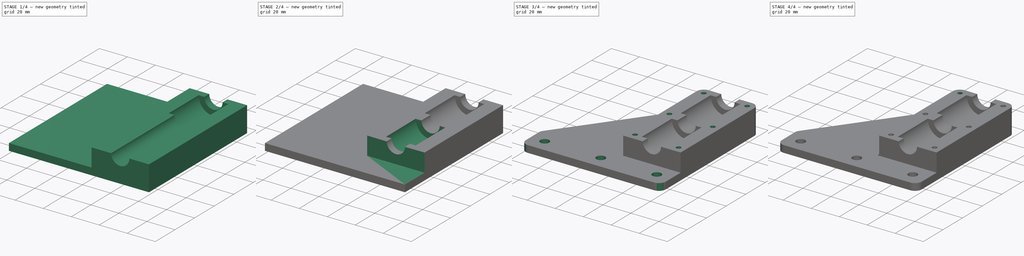
[diagram: build sequence overview — one tinted view per stage of 4, left to right]
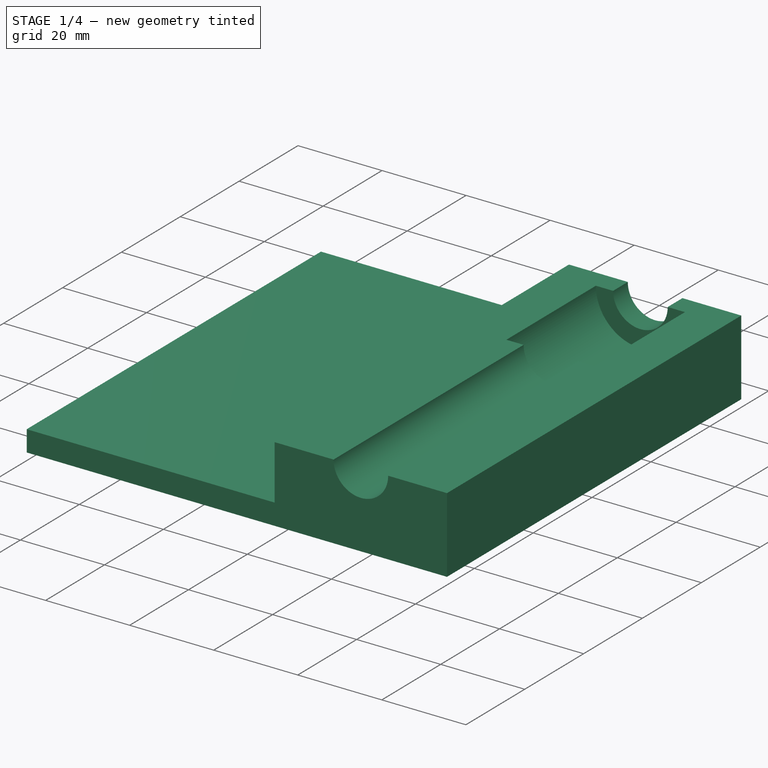
[diagram: stage 1 of 4 — iso view after this stage's code; geometry added in this stage tinted green]
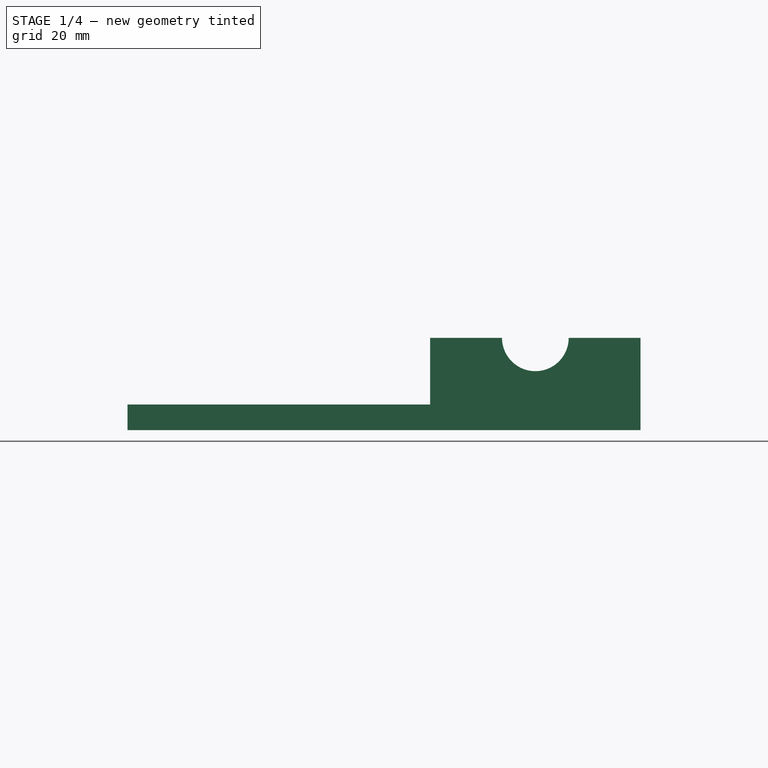
[diagram: stage 1 of 4 — front view after this stage's code; geometry added in this stage tinted green]
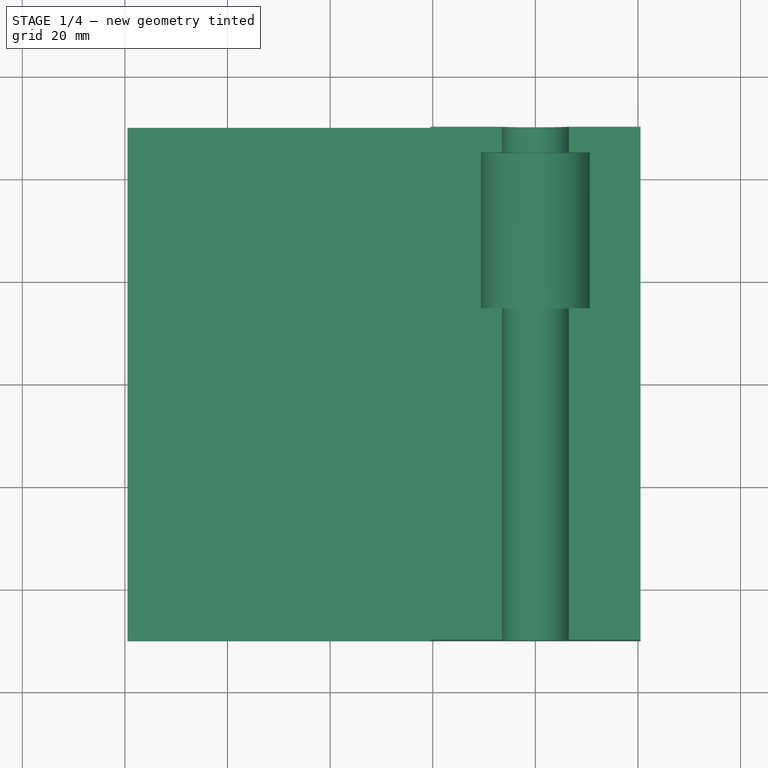
[diagram: stage 1 of 4 — top view after this stage's code; geometry added in this stage tinted green]
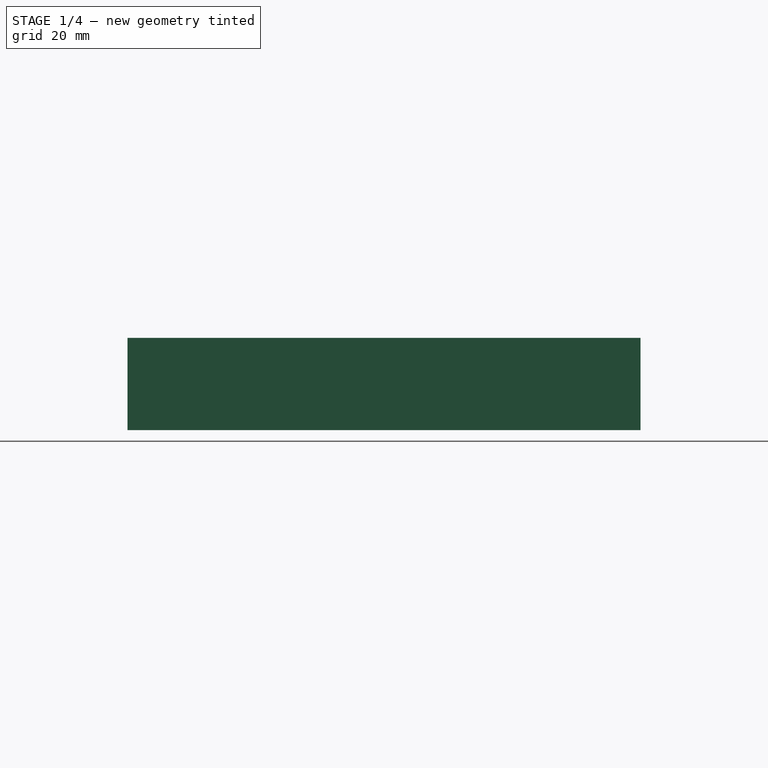
[diagram: stage 1 of 4 — right view after this stage's code; geometry added in this stage tinted green]
FCSTD DOCUMENT  (FreeCAD 0.19R20209 (Git))
Label: Z-Axel-Bearing_1000a
License: Creative Commons Attribution
LicenseURL: http://creativecommons.org/licenses/by/4.0/
objects: Sketcher::SketchObject×7, PartDesign::Pocket×6, PartDesign::Plane×3, PartDesign::Pad×1, PartDesign::Fillet×1, PartDesign::Chamfer×1, PartDesign::Body×1
note: 29 computed .brp shape members not serialized (recipe doc carries the construction recipe); baked Part::Feature solids carry a one-line shape summary decoded from their .brp

FEATURE [Sketcher::SketchObject] Sketch001
  MapMode = 5
  Placement = pos=(0,0,0) rot=(1,0,0;1.5708rad)
  Support = -> [XZ_Plane]
  expr: Constraints[19] = 21 + 20
  sketch-geometry (10):
    g0: Circle [constr] CenterX=0 CenterY=0 CenterZ=0 NormalX=0 NormalY=0 NormalZ=1 AngleXU=0 Radius=6.5
    g1: Circle [constr] CenterX=0 CenterY=0 CenterZ=0 NormalX=0 NormalY=0 NormalZ=1 AngleXU=0 Radius=10.5
    g2: LineSegment StartX=-20.5 StartY=0 StartZ=0 EndX=-6.5 EndY=0 EndZ=0
    g3: LineSegment StartX=20.5 StartY=0 StartZ=0 EndX=20.5 EndY=-18 EndZ=0
    g4: LineSegment StartX=20.5 StartY=-18 StartZ=0 EndX=-79.5 EndY=-18 EndZ=0
    g5: LineSegment StartX=-79.5 StartY=-18 StartZ=0 EndX=-79.5 EndY=-13 EndZ=0
    g6: LineSegment StartX=-20.5 StartY=0 StartZ=0 EndX=-20.5 EndY=-13 EndZ=0
    g7: LineSegment StartX=-20.5 StartY=-13 StartZ=0 EndX=-79.5 EndY=-13 EndZ=0
    g8: ArcOfCircle CenterX=0 CenterY=3.2e-15 CenterZ=0 NormalX=0 NormalY=0 NormalZ=1 AngleXU=0 Radius=6.5 StartAngle=3.14159 EndAngle=6.28319
    g9: LineSegment StartX=6.5 StartY=0 StartZ=0 EndX=20.5 EndY=0 EndZ=0
  constraints (28):
    c: Diameter(g0) = 13
    c: Coincident(g0,g-1)
    c: Diameter(g1) = 21
    c: Coincident(g1,g0)
    c: Coincident(g9,g3)
    c: Coincident(g3,g4)
    c: Coincident(g4,g5)
    c: Horizontal(g2)
    c: Horizontal(g4)
    c: Vertical(g3)
    c: Vertical(g5)
    c: DistanceY(g3,g3) = 18
    c: Vertical(g6)
    c: Coincident(g6,g7)
    c: Horizontal(g7)
    c: Coincident(g2,g6)
    c: Coincident(g5,g7)
    c: DistanceY(g4,g5) = 5
    c: Symmetric(g2,g9,g-1)
    c: DistanceX(g2,g9) = 41
    c: Horizontal(g8,g8)
    c: Horizontal(g8,g8)
    c: Diameter(g8) = 13
    c: Coincident(g8,g-1)
    c: PointOnObject(g2,g0)
    c: PointOnObject(g9,g0)
    c: Tangent(g2,g9)
    c: DistanceX(g4,g3) = 100
FEATURE [PartDesign::Pad] Pad
  Length = 100
  Length2 = 100
  Midplane = true
  Placement = pos=(0,0,0) rot=(1,0,0;1.5708rad)
  Profile = -> Sketch001
  Refine = true
  Type = 0
FEATURE [PartDesign::Plane] DatumPlane
  AttachmentOffset = pos=(0,0,-45) rot=(0,0,1;0rad)
  Length = 118.957
  MapMode = 5
  Placement = pos=(0,45,1e-14) rot=(1,0,0;1.5708rad)
  ResizeMode = 0
  Support = -> [XZ_Plane]
  Width = 64.4568
FEATURE [Sketcher::SketchObject] Sketch
  MapMode = 5
  Placement = pos=(0,45,1e-14) rot=(1,0,0;1.5708rad)
  Support = -> [DatumPlane]
  sketch-geometry (1):
    g0: Circle CenterX=0 CenterY=0 CenterZ=0 NormalX=0 NormalY=0 NormalZ=1 AngleXU=0 Radius=10.6
  constraints (2):
    c: Diameter(g0) = 21.2
    c: Coincident(g0,g-1)
FEATURE [PartDesign::Pocket] Pocket
  BaseFeature = -> Pad
  Length = 30.4
  Length2 = 100
  Placement = pos=(0,0,0) rot=(1,0,0;1.5708rad)
  Profile = -> Sketch
  Refine = true
  Reversed = true
  Type = 0
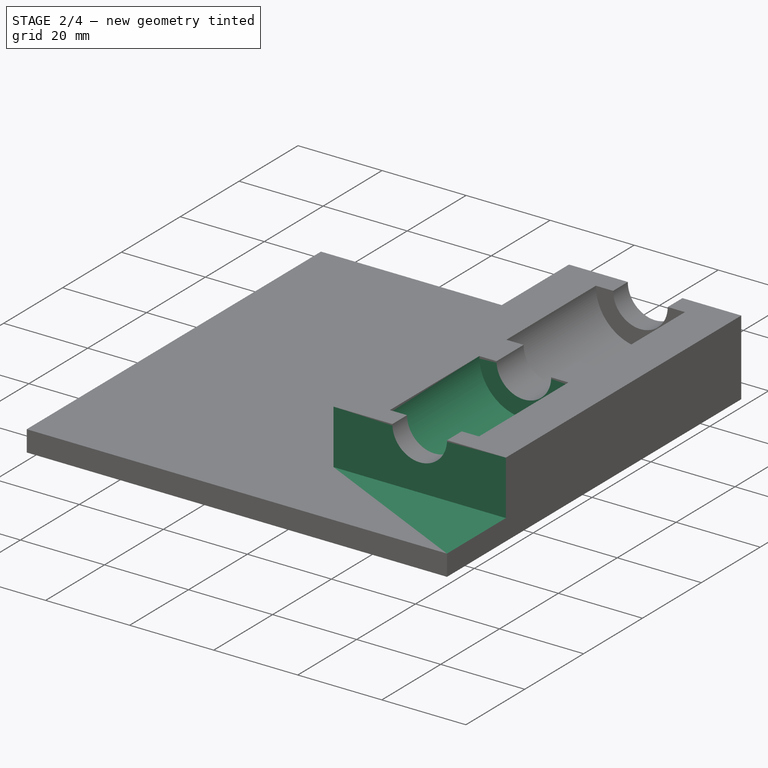
[diagram: stage 2 of 4 — iso view after this stage's code; geometry added in this stage tinted green]
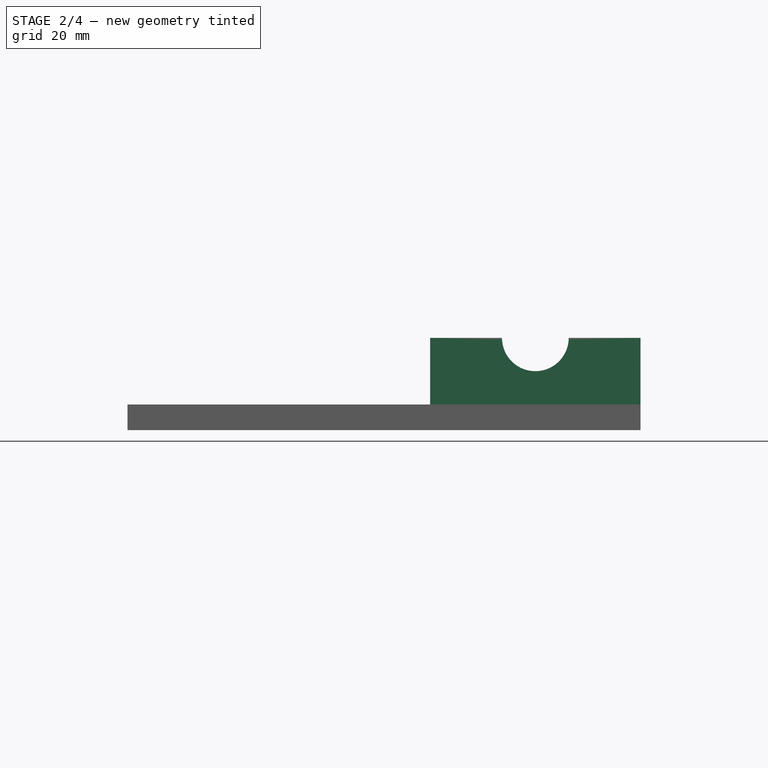
[diagram: stage 2 of 4 — front view after this stage's code; geometry added in this stage tinted green]
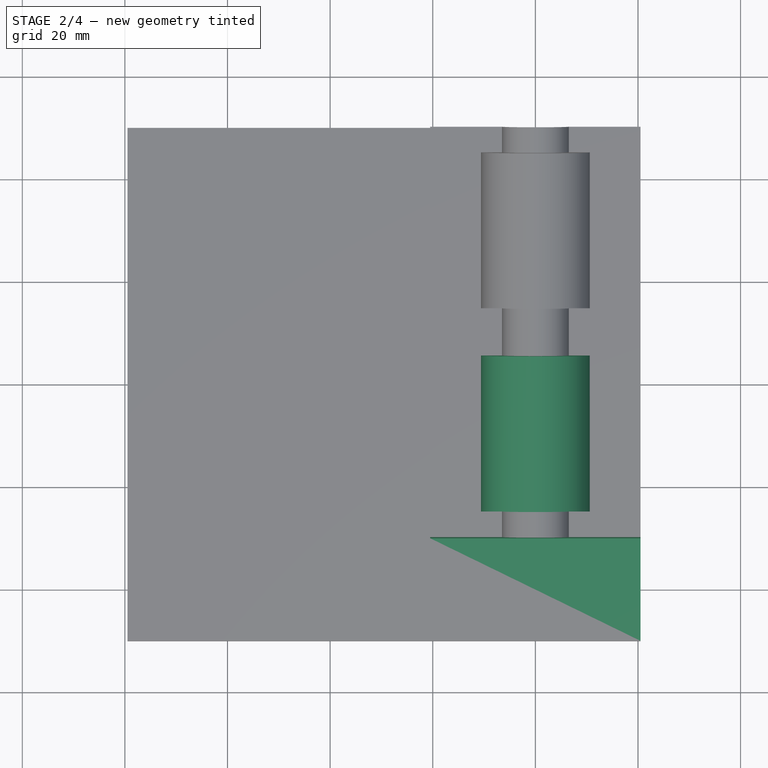
[diagram: stage 2 of 4 — top view after this stage's code; geometry added in this stage tinted green]
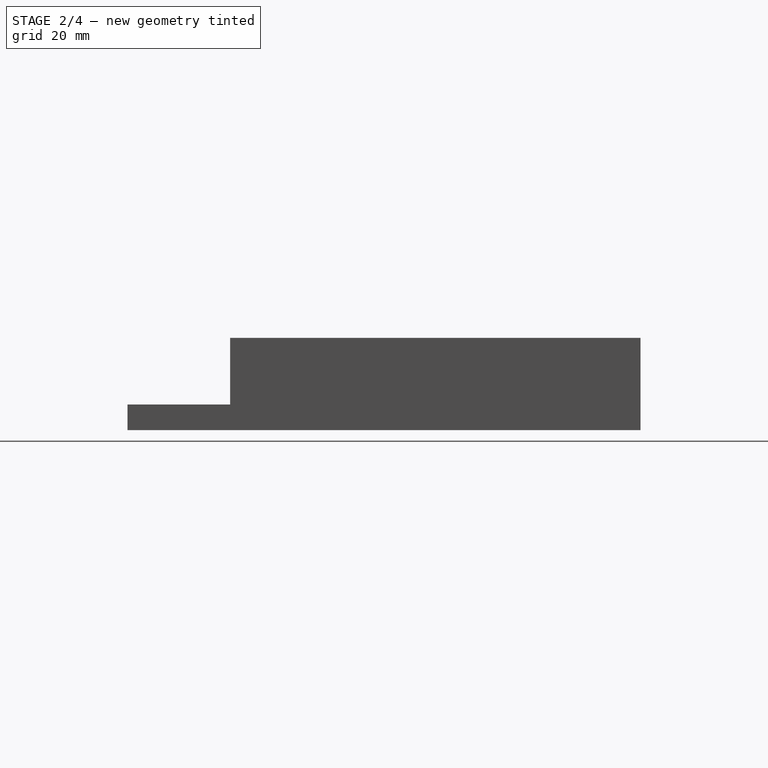
[diagram: stage 2 of 4 — right view after this stage's code; geometry added in this stage tinted green]
FEATURE [PartDesign::Plane] DatumPlane001
  AttachmentOffset = pos=(0,0,25) rot=(0,0,1;0rad)
  Length = 118.957
  MapMode = 5
  Placement = pos=(0,-25,-5.6e-15) rot=(1,0,0;1.5708rad)
  ResizeMode = 0
  Support = -> [XZ_Plane]
  Width = 64.4568
FEATURE [Sketcher::SketchObject] Sketch002
  MapMode = 5
  Placement = pos=(0,-25,-5.6e-15) rot=(1,0,0;1.5708rad)
  Support = -> [DatumPlane001]
  sketch-geometry (1):
    g0: Circle CenterX=0 CenterY=0 CenterZ=0 NormalX=0 NormalY=0 NormalZ=1 AngleXU=0 Radius=10.6
  constraints (2):
    c: Diameter(g0) = 21.2
    c: Coincident(g0,g-1)
FEATURE [PartDesign::Pocket] Pocket001
  BaseFeature = -> Pocket
  Length = 30.4
  Length2 = 100
  Placement = pos=(0,0,0) rot=(1,0,0;1.5708rad)
  Profile = -> Sketch002
  Refine = true
  Type = 0
FEATURE [PartDesign::Plane] DatumPlane002
  AttachmentOffset = pos=(0,0,30) rot=(0,0,1;0rad)
  Length = 118.957
  MapMode = 5
  Placement = pos=(0,-30,-6.7e-15) rot=(1,0,0;1.5708rad)
  ResizeMode = 0
  Support = -> [XZ_Plane]
  Width = 64.4568
FEATURE [Sketcher::SketchObject] Sketch003
  ExternalGeometry = -> [Pocket001]
  MapMode = 5
  Placement = pos=(0,-30,-6.7e-15) rot=(1,0,0;1.5708rad)
  Support = -> [DatumPlane002]
  sketch-geometry (4):
    g0: LineSegment StartX=-20.5 StartY=7.39497 StartZ=0 EndX=25.828 EndY=7.39497 EndZ=0
    g1: LineSegment StartX=25.828 StartY=7.39497 StartZ=0 EndX=25.828 EndY=-13 EndZ=0
    g2: LineSegment StartX=25.828 StartY=-13 StartZ=0 EndX=-20.5 EndY=-13 EndZ=0
    g3: LineSegment StartX=-20.5 StartY=-13 StartZ=0 EndX=-20.5 EndY=7.39497 EndZ=0
  constraints (9):
    c: Coincident(g0,g1)
    c: Coincident(g1,g2)
    c: Coincident(g2,g3)
    c: Coincident(g3,g0)
    c: Horizontal(g0)
    c: Horizontal(g2)
    c: Vertical(g1)
    c: Vertical(g3)
    c: Coincident(g2,g-3)
FEATURE [PartDesign::Pocket] Pocket002
  BaseFeature = -> Pocket001
  Length = 5
  Length2 = 100
  Placement = pos=(0,0,0) rot=(1,0,0;1.5708rad)
  Profile = -> Sketch003
  Refine = true
  Reversed = true
  Type = 1
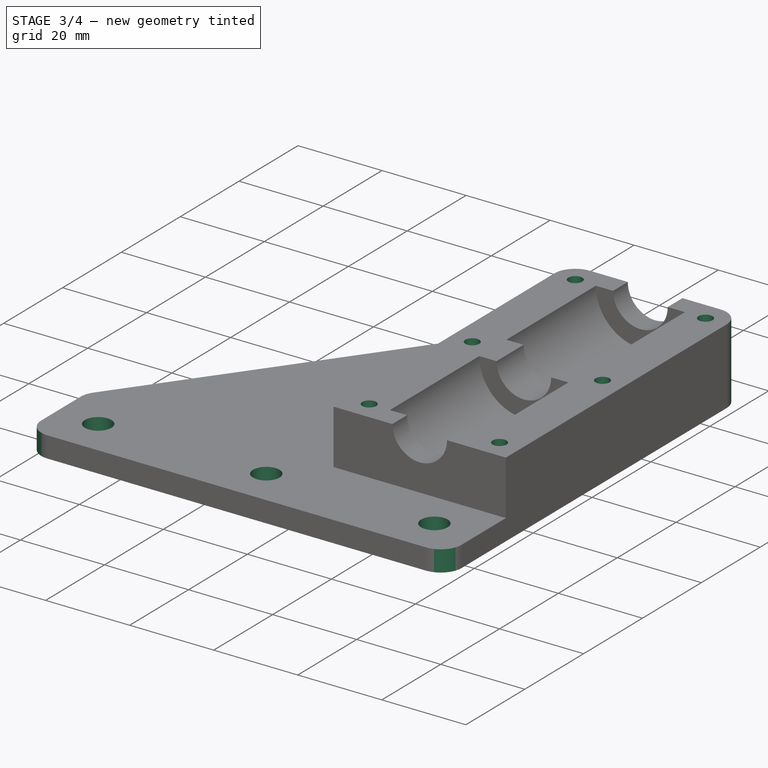
[diagram: stage 3 of 4 — iso view after this stage's code; geometry added in this stage tinted green]
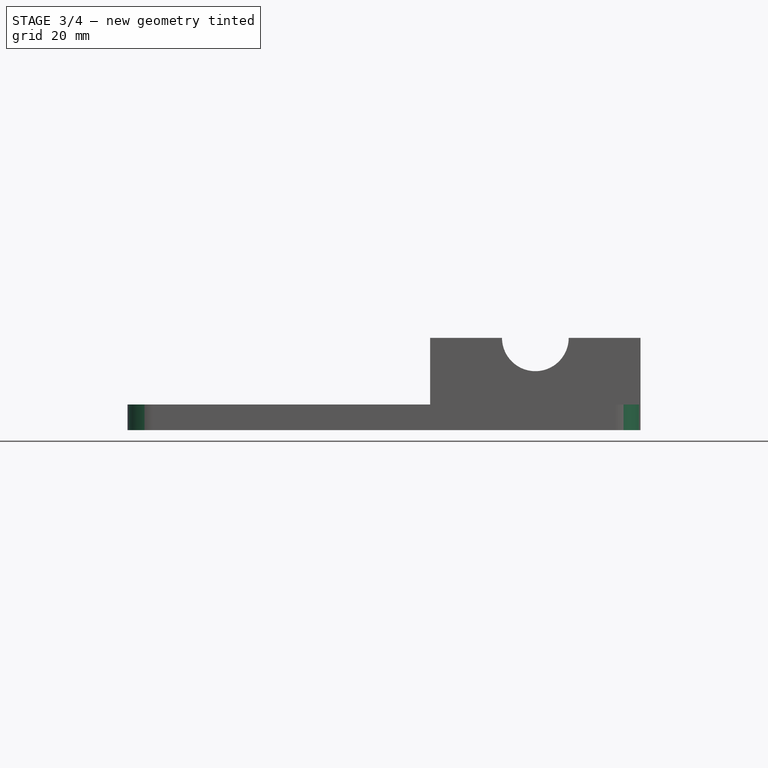
[diagram: stage 3 of 4 — front view after this stage's code; geometry added in this stage tinted green]
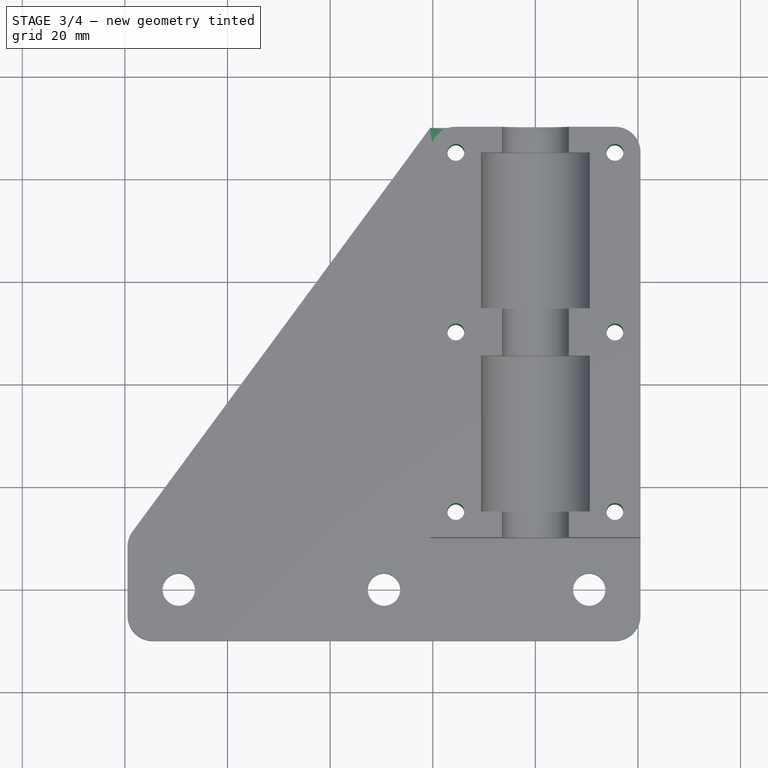
[diagram: stage 3 of 4 — top view after this stage's code; geometry added in this stage tinted green]
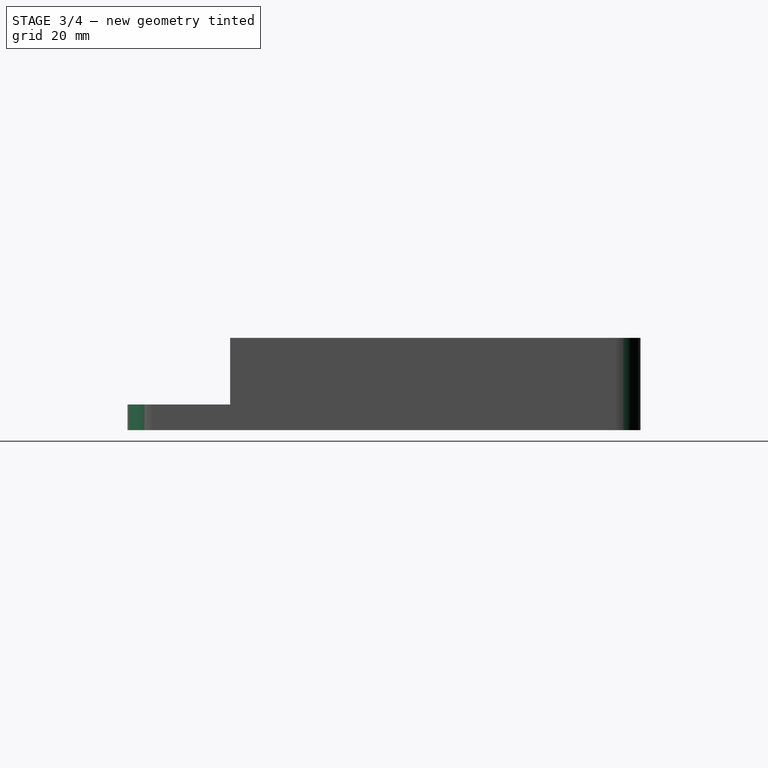
[diagram: stage 3 of 4 — right view after this stage's code; geometry added in this stage tinted green]
FEATURE [Sketcher::SketchObject] Sketch004
  ExternalGeometry = -> [Pocket002]
  MapMode = 5
  Support = -> [XY_Plane]
  sketch-geometry (3):
    g0: LineSegment StartX=-20.5 StartY=50 StartZ=0 EndX=-79.5 EndY=-30 EndZ=0
    g1: LineSegment StartX=-79.5 StartY=-30 StartZ=0 EndX=-79.5 EndY=50 EndZ=0
    g2: LineSegment StartX=-79.5 StartY=50 StartZ=0 EndX=-20.5 EndY=50 EndZ=0
  constraints (7):
    c: Coincident(g0,g1)
    c: Vertical(g1)
    c: Coincident(g1,g2)
    c: Coincident(g2,g0)
    c: Coincident(g0,g-3)
    c: Coincident(g1,g-4)
    c: Horizontal(g0,g-3)
FEATURE [PartDesign::Pocket] Pocket003
  BaseFeature = -> Pocket002
  Length = 5
  Length2 = 100
  Placement = pos=(0,0,0) rot=(1,0,0;1.5708rad)
  Profile = -> Sketch004
  Refine = true
  Type = 1
FEATURE [Sketcher::SketchObject] Sketch005
  ExternalGeometry = -> [Pocket003]
  MapMode = 5
  Support = -> [XY_Plane]
  sketch-geometry (9):
    g0: Circle CenterX=-69.5 CenterY=-40 CenterZ=0 NormalX=0 NormalY=0 NormalZ=1 AngleXU=0 Radius=3.15
    g1: Circle CenterX=-29.5 CenterY=-40 CenterZ=0 NormalX=0 NormalY=0 NormalZ=1 AngleXU=0 Radius=3.15
    g2: Circle CenterX=10.5 CenterY=-40 CenterZ=0 NormalX=0 NormalY=0 NormalZ=1 AngleXU=0 Radius=3.15
    g3: Circle CenterX=-15.5 CenterY=45 CenterZ=0 NormalX=0 NormalY=0 NormalZ=1 AngleXU=0 Radius=1.65
    g4: Circle CenterX=-15.5 CenterY=10 CenterZ=0 NormalX=0 NormalY=0 NormalZ=1 AngleXU=0 Radius=1.65
    g5: Circle CenterX=-15.5 CenterY=-25 CenterZ=0 NormalX=0 NormalY=0 NormalZ=1 AngleXU=0 Radius=1.65
    g6: Circle CenterX=15.5 CenterY=45 CenterZ=0 NormalX=0 NormalY=0 NormalZ=1 AngleXU=0 Radius=1.65
    g7: Circle CenterX=15.5 CenterY=10 CenterZ=0 NormalX=0 NormalY=0 NormalZ=1 AngleXU=0 Radius=1.65
    g8: Circle CenterX=15.5 CenterY=-25 CenterZ=0 NormalX=0 NormalY=0 NormalZ=1 AngleXU=0 Radius=1.65
  constraints (24):
    c: Equal(g0,g1)
    c: Equal(g1,g2)
    c: Horizontal(g0,g1)
    c: Symmetric(g0,g2,g1)
    c: DistanceX(g0,g2) = 80
    c: DistanceY(g-3,g2) = 10
    c: DistanceX(g2,g-3) = 10
    c: Diameter(g0) = 6.3
    c: Equal(g3,g4)
    c: Equal(g4,g5)
    c: Equal(g5,g8)
    c: Equal(g8,g7)
    c: Equal(g7,g6)
    c: Diameter(g3) = 3.3
    c: Horizontal(g4,g7)
    c: Horizontal(g5,g8)
    c: Vertical(g5,g4)
    c: Vertical(g8,g7)
    c: Vertical(g7,g6)
    c: Symmetric(g5,g3,g4)
    c: Symmetric(g6,g3,g-2)
    c: DistanceX(g6,g-4) = 5
    c: DistanceY(g-4,g8) = 5
    c: DistanceY(g6,g-4) = 5
FEATURE [PartDesign::Pocket] Pocket004
  BaseFeature = -> Pocket003
  Length = 5
  Length2 = 100
  Placement = pos=(0,0,0) rot=(1,0,0;1.5708rad)
  Profile = -> Sketch005
  Refine = true
  Type = 1
FEATURE [PartDesign::Fillet] Fillet
  Base = -> Pocket004 [Edge64,Edge35,Edge49,Edge7,Edge1]
  BaseFeature = -> Pocket004
  Placement = pos=(0,0,0) rot=(1,0,0;1.5708rad)
  Radius = 5
  Refine = true
  SupportTransform = true
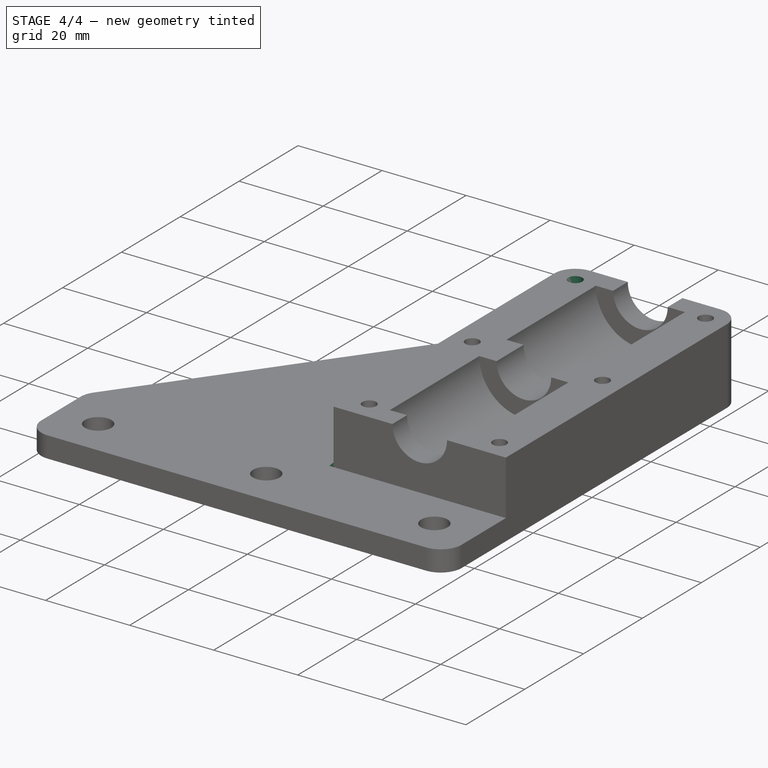
[diagram: stage 4 of 4 — iso view after this stage's code; geometry added in this stage tinted green]
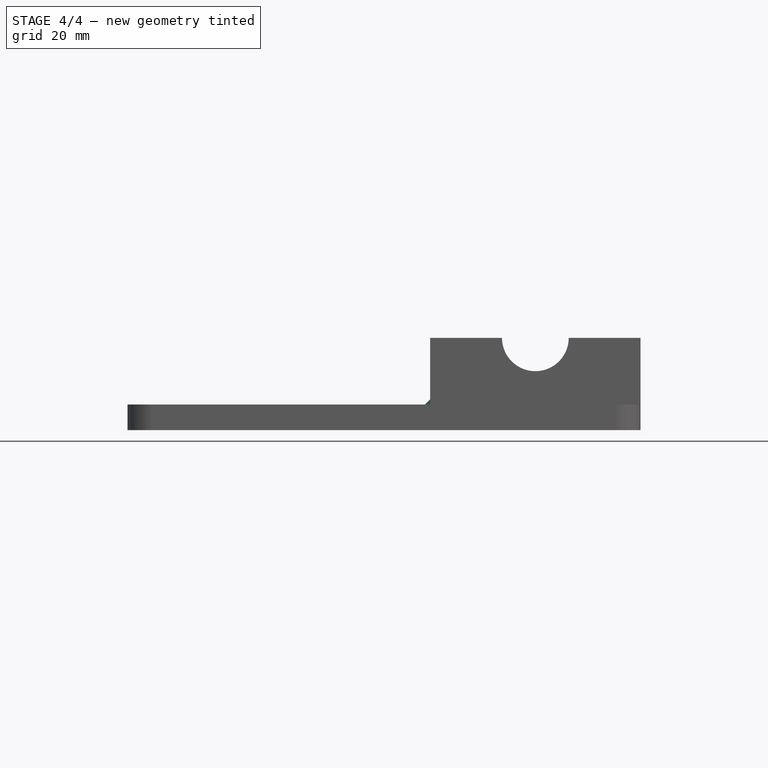
[diagram: stage 4 of 4 — front view after this stage's code; geometry added in this stage tinted green]
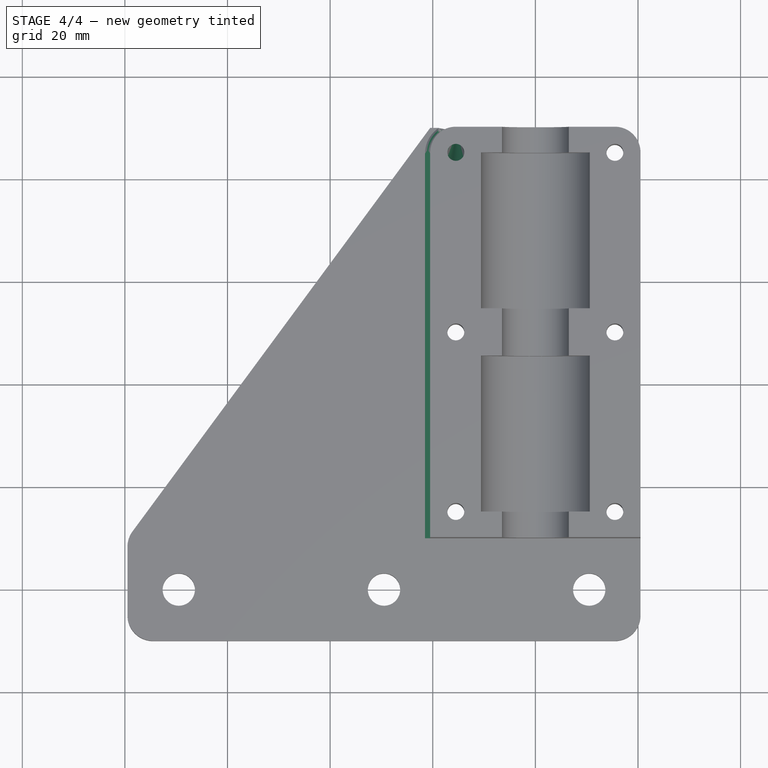
[diagram: stage 4 of 4 — top view after this stage's code; geometry added in this stage tinted green]
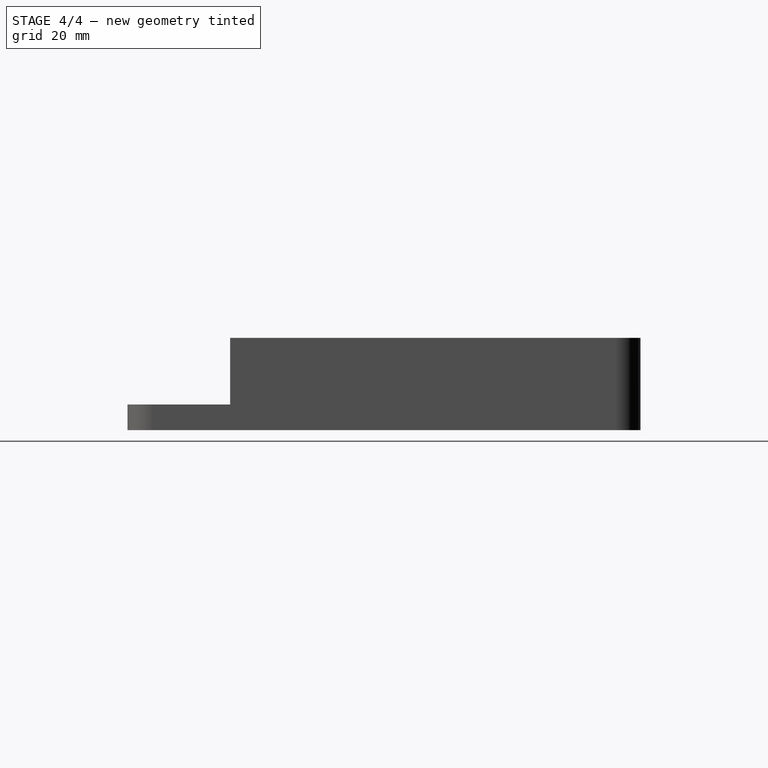
[diagram: stage 4 of 4 — right view after this stage's code; geometry added in this stage tinted green]
FEATURE [PartDesign::Chamfer] Chamfer
  Base = -> Fillet [Edge1]
  BaseFeature = -> Fillet
  Placement = pos=(0,0,0) rot=(1,0,0;1.5708rad)
  Refine = true
  Size = 1
  SupportTransform = true
FEATURE [Sketcher::SketchObject] Sketch006
  ExternalGeometry = -> [Chamfer]
  MapMode = 5
  Placement = pos=(0,-6e-15,-18) rot=(1,0,0;3.14159rad)
  Support = -> [Chamfer]
  sketch-geometry (42):
    g0: LineSegment StartX=-12.7 StartY=23.3834 StartZ=0 EndX=-12.7 EndY=26.6166 EndZ=0
    g1: LineSegment StartX=-12.7 StartY=26.6166 StartZ=0 EndX=-15.5 EndY=28.2332 EndZ=0
    g2: LineSegment StartX=-15.5 StartY=28.2332 StartZ=0 EndX=-18.3 EndY=26.6166 EndZ=0
    g3: LineSegment StartX=-18.3 StartY=26.6166 StartZ=0 EndX=-18.3 EndY=23.3834 EndZ=0
    g4: LineSegment StartX=-18.3 StartY=23.3834 StartZ=0 EndX=-15.5 EndY=21.7668 EndZ=0
    g5: LineSegment StartX=-15.5 StartY=21.7668 StartZ=0 EndX=-12.7 EndY=23.3834 EndZ=0
    g6: Circle [constr] CenterX=-15.5 CenterY=25 CenterZ=0 NormalX=0 NormalY=0 NormalZ=1 AngleXU=0 Radius=3.23316
    g7: LineSegment StartX=-12.7 StartY=-11.6166 StartZ=0 EndX=-12.7 EndY=-8.38342 EndZ=0
    g8: LineSegment StartX=-12.7 StartY=-8.38342 StartZ=0 EndX=-15.5 EndY=-6.76684 EndZ=0
    g9: LineSegment StartX=-15.5 StartY=-6.76684 StartZ=0 EndX=-18.3 EndY=-8.38342 EndZ=0
    g10: LineSegment StartX=-18.3 StartY=-8.38342 StartZ=0 EndX=-18.3 EndY=-11.6166 EndZ=0
    g11: LineSegment StartX=-18.3 StartY=-11.6166 StartZ=0 EndX=-15.5 EndY=-13.2332 EndZ=0
    g12: LineSegment StartX=-15.5 StartY=-13.2332 StartZ=0 EndX=-12.7 EndY=-11.6166 EndZ=0
    g13: Circle [constr] CenterX=-15.5 CenterY=-10 CenterZ=0 NormalX=0 NormalY=0 NormalZ=1 AngleXU=0 Radius=3.23316
    g14: LineSegment StartX=-12.7 StartY=-46.6166 StartZ=0 EndX=-12.7 EndY=-43.3834 EndZ=0
    g15: LineSegment StartX=-12.7 StartY=-43.3834 StartZ=0 EndX=-15.5 EndY=-41.7668 EndZ=0
    g16: LineSegment StartX=-15.5 StartY=-41.7668 StartZ=0 EndX=-18.3 EndY=-43.3834 EndZ=0
    g17: LineSegment StartX=-18.3 StartY=-43.3834 StartZ=0 EndX=-18.3 EndY=-46.6166 EndZ=0
    g18: LineSegment StartX=-18.3 StartY=-46.6166 StartZ=0 EndX=-15.5 EndY=-48.2332 EndZ=0
    g19: LineSegment StartX=-15.5 StartY=-48.2332 StartZ=0 EndX=-12.7 EndY=-46.6166 EndZ=0
    g20: Circle [constr] CenterX=-15.5 CenterY=-45 CenterZ=0 NormalX=0 NormalY=0 NormalZ=1 AngleXU=0 Radius=3.23316
    g21: LineSegment StartX=18.3 StartY=23.3834 StartZ=0 EndX=18.3 EndY=26.6166 EndZ=0
    g22: LineSegment StartX=18.3 StartY=26.6166 StartZ=0 EndX=15.5 EndY=28.2332 EndZ=0
    g23: LineSegment StartX=15.5 StartY=28.2332 StartZ=0 EndX=12.7 EndY=26.6166 EndZ=0
    g24: LineSegment StartX=12.7 StartY=26.6166 StartZ=0 EndX=12.7 EndY=23.3834 EndZ=0
    g25: LineSegment StartX=12.7 StartY=23.3834 StartZ=0 EndX=15.5 EndY=21.7668 EndZ=0
    g26: LineSegment StartX=15.5 StartY=21.7668 StartZ=0 EndX=18.3 EndY=23.3834 EndZ=0
    g27: Circle [constr] CenterX=15.5 CenterY=25 CenterZ=0 NormalX=0 NormalY=0 NormalZ=1 AngleXU=0 Radius=3.23316
    g28: LineSegment StartX=18.3 StartY=-11.6166 StartZ=0 EndX=18.3 EndY=-8.38342 EndZ=0
    g29: LineSegment StartX=18.3 StartY=-8.38342 StartZ=0 EndX=15.5 EndY=-6.76684 EndZ=0
    g30: LineSegment StartX=15.5 StartY=-6.76684 StartZ=0 EndX=12.7 EndY=-8.38342 EndZ=0
    g31: LineSegment StartX=12.7 StartY=-8.38342 StartZ=0 EndX=12.7 EndY=-11.6166 EndZ=0
    g32: LineSegment StartX=12.7 StartY=-11.6166 StartZ=0 EndX=15.5 EndY=-13.2332 EndZ=0
    g33: LineSegment StartX=15.5 StartY=-13.2332 StartZ=0 EndX=18.3 EndY=-11.6166 EndZ=0
    g34: Circle [constr] CenterX=15.5 CenterY=-10 CenterZ=0 NormalX=0 NormalY=0 NormalZ=1 AngleXU=0 Radius=3.23316
    g35: LineSegment StartX=18.3 StartY=-46.6166 StartZ=0 EndX=18.3 EndY=-43.3834 EndZ=0
    g36: LineSegment StartX=18.3 StartY=-43.3834 StartZ=0 EndX=15.5 EndY=-41.7668 EndZ=0
    g37: LineSegment StartX=15.5 StartY=-41.7668 StartZ=0 EndX=12.7 EndY=-43.3834 EndZ=0
    g38: LineSegment StartX=12.7 StartY=-43.3834 StartZ=0 EndX=12.7 EndY=-46.6166 EndZ=0
    g39: LineSegment StartX=12.7 StartY=-46.6166 StartZ=0 EndX=15.5 EndY=-48.2332 EndZ=0
    g40: LineSegment StartX=15.5 StartY=-48.2332 StartZ=0 EndX=18.3 EndY=-46.6166 EndZ=0
    g41: Circle [constr] CenterX=15.5 CenterY=-45 CenterZ=0 NormalX=0 NormalY=0 NormalZ=1 AngleXU=0 Radius=3.23316
  constraints (96):
    c: Coincident(g0,g1)
    c: Coincident(g1,g2)
    c: Coincident(g2,g3)
    c: Coincident(g3,g4)
    c: Coincident(g4,g5)
    c: Coincident(g5,g0)
    c: Equal(g0, g1-g5) x5
    c: PointOnObject(g0,g6)
    c: PointOnObject(g1,g6)
    c: PointOnObject(g2,g6)
    c: PointOnObject(g3,g6)
    c: PointOnObject(g4,g6)
    c: PointOnObject(g5,g6)
    c: Coincident(g7,g8)
    c: Coincident(g8,g9)
    c: Coincident(g9,g10)
    c: Coincident(g10,g11)
    c: Coincident(g11,g12)
    c: Coincident(g12,g7)
    c: Equal(g7, g8-g12) x5
    c: PointOnObject(g7,g13)
    c: PointOnObject(g8,g13)
    c: PointOnObject(g9,g13)
    c: PointOnObject(g10,g13)
    c: PointOnObject(g11,g13)
    c: PointOnObject(g12,g13)
    c: Coincident(g14,g15)
    c: Coincident(g15,g16)
    c: Coincident(g16,g17)
    c: Coincident(g17,g18)
    c: Coincident(g18,g19)
    c: Coincident(g19,g14)
    c: Equal(g14, g15-g19) x5
    c: PointOnObject(g14,g20)
    c: PointOnObject(g15,g20)
    c: PointOnObject(g16,g20)
    c: PointOnObject(g17,g20)
    c: PointOnObject(g18,g20)
    c: PointOnObject(g19,g20)
    c: Coincident(g21,g22)
    c: Coincident(g22,g23)
    c: Coincident(g23,g24)
    c: Coincident(g24,g25)
    c: Coincident(g25,g26)
    c: Coincident(g26,g21)
    c: Equal(g21, g22-g26) x5
    c: PointOnObject(g21,g27)
    c: PointOnObject(g22,g27)
    c: PointOnObject(g23,g27)
    c: PointOnObject(g24,g27)
    c: PointOnObject(g25,g27)
    c: PointOnObject(g26,g27)
    c: Coincident(g28,g29)
    c: Coincident(g29,g30)
    c: Coincident(g30,g31)
    c: Coincident(g31,g32)
    c: Coincident(g32,g33)
    c: Coincident(g33,g28)
    c: Equal(g28, g29-g33) x5
    c: PointOnObject(g28,g34)
    c: PointOnObject(g29,g34)
    c: PointOnObject(g30,g34)
    c: PointOnObject(g31,g34)
    c: PointOnObject(g32,g34)
    c: PointOnObject(g33,g34)
    c: Coincident(g35,g36)
    c: Coincident(g36,g37)
    c: Coincident(g37,g38)
    c: Coincident(g38,g39)
    c: Coincident(g39,g40)
    c: Coincident(g40,g35)
    c: Equal(g35, g36-g40) x5
    c: PointOnObject(g35,g41)
    c: PointOnObject(g36,g41)
    c: PointOnObject(g37,g41)
    c: PointOnObject(g38,g41)
    c: PointOnObject(g39,g41)
    c: PointOnObject(g40,g41)
    c: Vertical(g41,g36)
    c: Vertical(g34,g29)
    c: Vertical(g20,g15)
    c: Vertical(g13,g8)
    c: Vertical(g13,g1)
    c: Vertical(g27,g22)
    c: Coincident(g6,g-3)
    c: Coincident(g27,g-7)
    c: Equal(g6,g27)
    c: Equal(g27,g34)
    c: Equal(g34,g13)
    c: Distance(g23,g21) = 5.6
    c: Coincident(g34,g-6)
    c: Coincident(g13,g-4)
    c: Equal(g34,g41)
    c: Equal(g41,g20)
    c: Coincident(g20,g-8)
    c: Coincident(g41,g-5)
FEATURE [PartDesign::Pocket] Pocket005
  BaseFeature = -> Chamfer
  Length = 5
  Length2 = 100
  Placement = pos=(0,0,0) rot=(1,0,0;1.5708rad)
  Profile = -> Sketch006
  Refine = true
  Type = 0
FEATURE [PartDesign::Body] Body
  Group = -> [Sketch001,Pad,DatumPlane,Sketch,Pocket,DatumPlane001,Sketch002,Pocket001,DatumPlane002,Sketch003,Pocket002,Sketch004,Pocket003,Sketch005,Pocket004,Fillet,Chamfer,Sketch006,Pocket005]
  Origin = -> Origin
  Tip = -> Pocket005
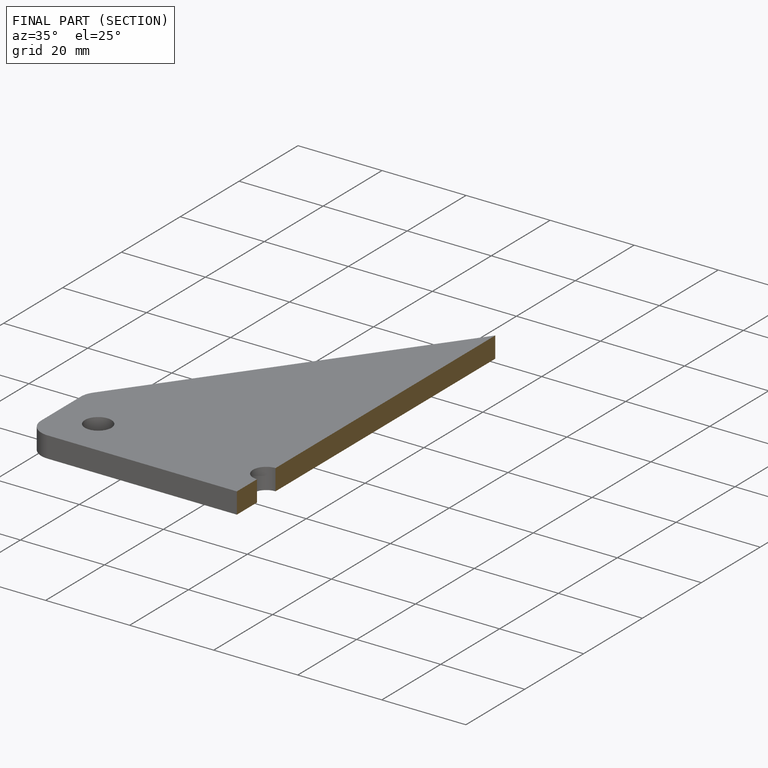
[diagram: finished part — half-section view (interior)]
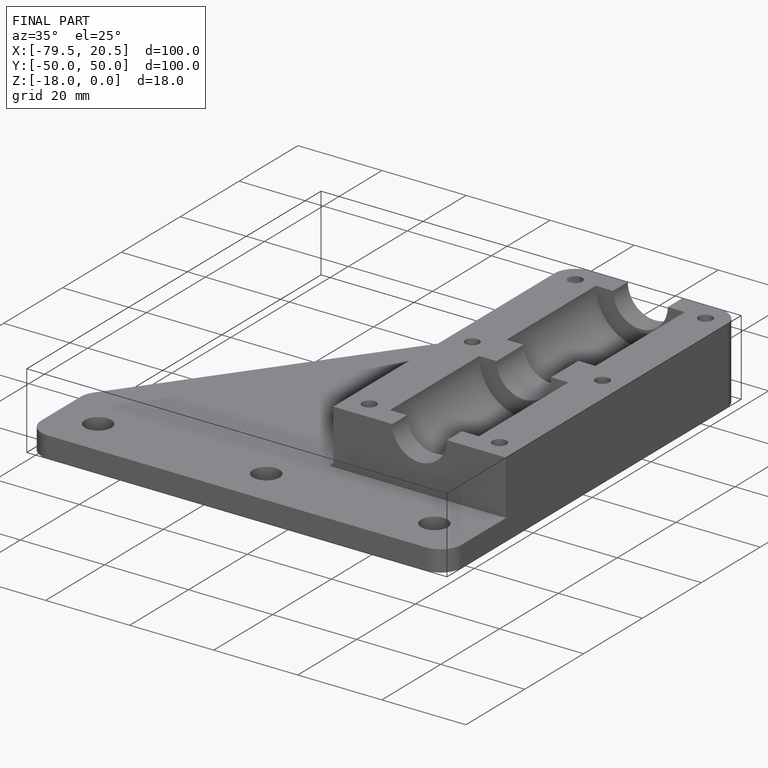
[diagram: finished part — iso view with bounding-box wireframe]
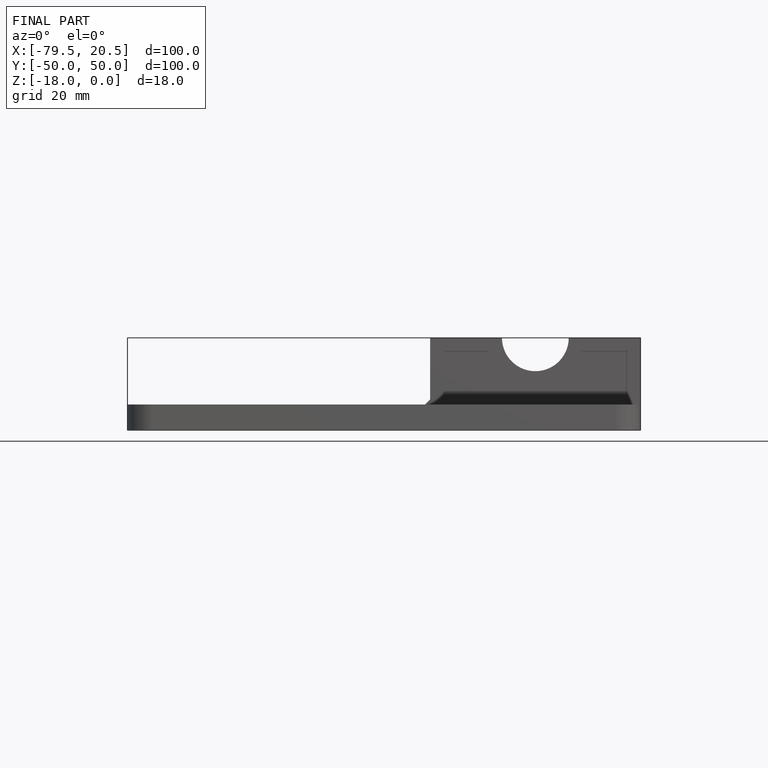
[diagram: finished part — front view with bounding-box wireframe]
